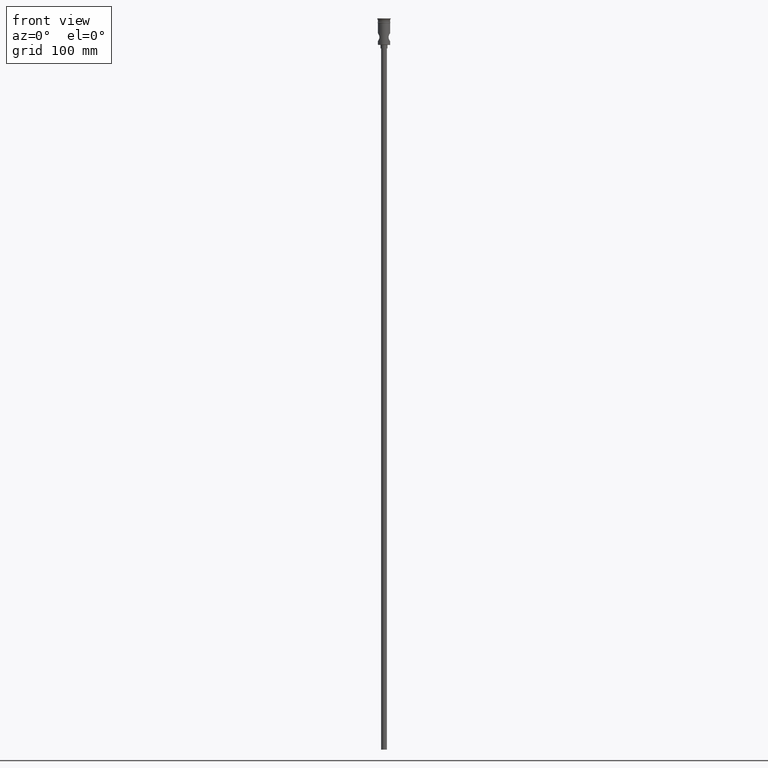
[diagram: clean part render]
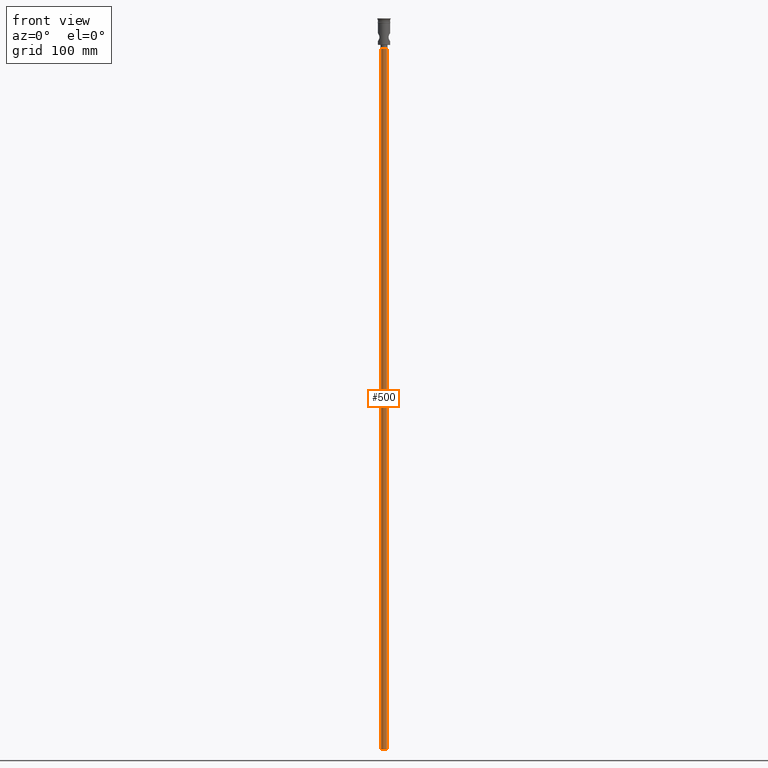
[diagram: same view with one face highlighted and labeled with its STEP entity id]
A machine part, front view. The second image highlights one B-rep face of the part: STEP entity #500.
In plain terms, the highlighted cylindrical surface (edge-blend (fillet) strip) has radius 2.5 mm, axis along (-0, -0, 1).
Its self-contained STEP definition (entity closure, byte-faithful):
#12 = LINE ( 'NONE', #493, #782 ) ;
#35 = CARTESIAN_POINT ( 'NONE',  ( 0.000000000000000000, 0.000000000000000000, -622.4999999999998863 ) ) ;
#47 = DIRECTION ( 'NONE',  ( -0.000000000000000000, -0.000000000000000000, 1.000000000000000000 ) ) ;
#86 = DIRECTION ( 'NONE',  ( -1.000000000000000000, 0.000000000000000000, 0.000000000000000000 ) ) ;
#156 = AXIS2_PLACEMENT_3D ( 'NONE', #560, #1155, #229 ) ;
#176 = ORIENTED_EDGE ( 'NONE', *, *, #763, .T. ) ;
#200 = CARTESIAN_POINT ( 'NONE',  ( 2.500000000000000000, 0.000000000000000000, -622.4999999999998863 ) ) ;
#208 = EDGE_CURVE ( 'NONE', #659, #344, #1317, .T. ) ;
#229 = DIRECTION ( 'NONE',  ( -1.000000000000000000, 0.000000000000000000, 0.000000000000000000 ) ) ;
#230 = AXIS2_PLACEMENT_3D ( 'NONE', #35, #957, #1163 ) ;
#251 = EDGE_LOOP ( 'NONE', ( #737, #985, #278, #176 ) ) ;
#278 = ORIENTED_EDGE ( 'NONE', *, *, #626, .T. ) ;
#344 = VERTEX_POINT ( 'NONE', #1355 ) ;
#362 = CARTESIAN_POINT ( 'NONE',  ( 2.500000000000000000, 0.000000000000000000, -25.50000000000000000 ) ) ;
#418 = DIRECTION ( 'NONE',  ( 0.000000000000000000, 0.000000000000000000, -1.000000000000000000 ) ) ;
#491 = VERTEX_POINT ( 'NONE', #362 ) ;
#493 = CARTESIAN_POINT ( 'NONE',  ( -2.500000000000000000, 3.061616997868383141E-16, -622.4999999999998863 ) ) ;
#500 = ADVANCED_FACE ( 'NONE', ( #719 ), #585, .T. ) ;
#560 = CARTESIAN_POINT ( 'NONE',  ( 0.000000000000000000, 0.000000000000000000, -25.50000000000000000 ) ) ;
#561 = VECTOR ( 'NONE', #1234, 1000.000000000000000 ) ;
#585 = CYLINDRICAL_SURFACE ( 'NONE', #230, 2.500000000000000000 ) ;
#626 = EDGE_CURVE ( 'NONE', #659, #491, #793, .T. ) ;
#659 = VERTEX_POINT ( 'NONE', #1246 ) ;
#719 = FACE_OUTER_BOUND ( 'NONE', #251, .T. ) ;
#737 = ORIENTED_EDGE ( 'NONE', *, *, #1311, .F. ) ;
#763 = EDGE_CURVE ( 'NONE', #491, #1154, #897, .T. ) ;
#782 = VECTOR ( 'NONE', #47, 1000.000000000000000 ) ;
#793 = LINE ( 'NONE', #200, #561 ) ;
#897 = CIRCLE ( 'NONE', #156, 2.500000000000000000 ) ;
#957 = DIRECTION ( 'NONE',  ( -0.000000000000000000, -0.000000000000000000, 1.000000000000000000 ) ) ;
#985 = ORIENTED_EDGE ( 'NONE', *, *, #208, .F. ) ;
#1103 = CARTESIAN_POINT ( 'NONE',  ( 0.000000000000000000, 0.000000000000000000, -622.4999999999998863 ) ) ;
#1154 = VERTEX_POINT ( 'NONE', #1400 ) ;
#1155 = DIRECTION ( 'NONE',  ( 0.000000000000000000, 0.000000000000000000, -1.000000000000000000 ) ) ;
#1163 = DIRECTION ( 'NONE',  ( 1.000000000000000000, 0.000000000000000000, 0.000000000000000000 ) ) ;
#1212 = AXIS2_PLACEMENT_3D ( 'NONE', #1103, #418, #86 ) ;
#1234 = DIRECTION ( 'NONE',  ( -0.000000000000000000, -0.000000000000000000, 1.000000000000000000 ) ) ;
#1246 = CARTESIAN_POINT ( 'NONE',  ( 2.500000000000000000, 0.000000000000000000, -622.4999999999998863 ) ) ;
#1311 = EDGE_CURVE ( 'NONE', #344, #1154, #12, .T. ) ;
#1317 = CIRCLE ( 'NONE', #1212, 2.500000000000000000 ) ;
#1355 = CARTESIAN_POINT ( 'NONE',  ( -2.500000000000000000, 3.061616997868383141E-16, -622.4999999999998863 ) ) ;
#1400 = CARTESIAN_POINT ( 'NONE',  ( -2.500000000000000000, 3.061616997868383141E-16, -25.50000000000000000 ) ) ;